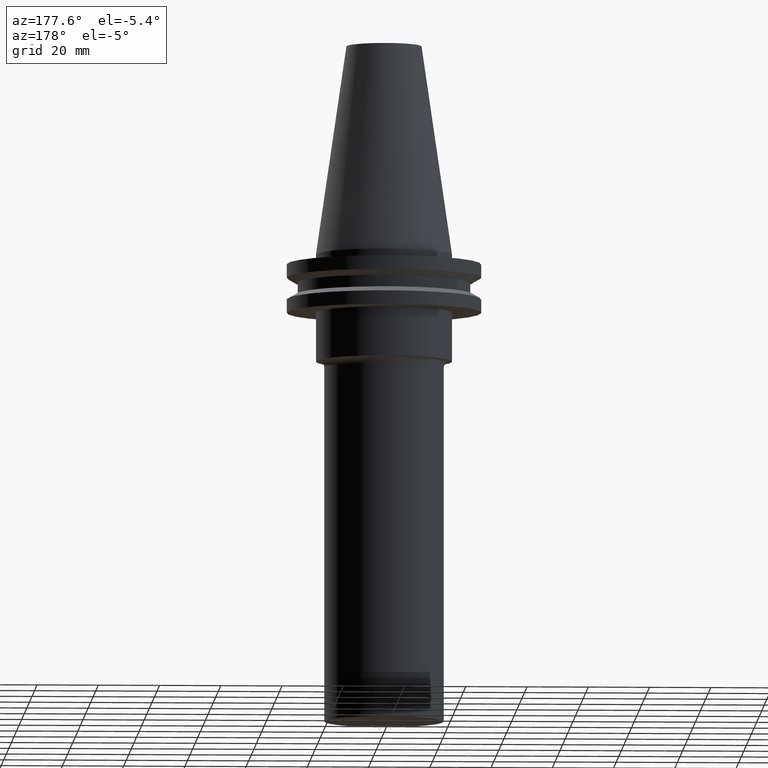
[diagram: clean part render]
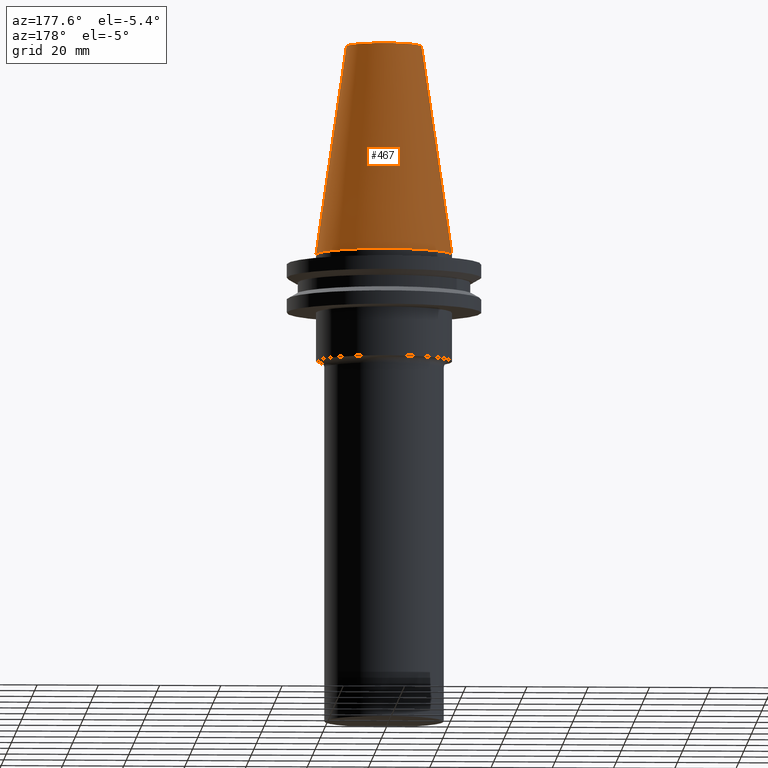
[diagram: same view with one face highlighted and labeled with its STEP entity id]
A machine part, auxiliary view. The second image highlights one B-rep face of the part: STEP entity #467.
In plain terms, the highlighted conical surface has half-angle 8.297 deg.
Its self-contained STEP definition (entity closure, byte-faithful):
#41 = AXIS2_PLACEMENT_3D ( 'NONE', #154, #354, #47 ) ;
#47 = DIRECTION ( 'NONE',  ( -1.000000000000000000, 0.000000000000000000, 0.000000000000000000 ) ) ;
#51 = CARTESIAN_POINT ( 'NONE',  ( 0.000000000000000000, 0.000000000000000000, 0.000000000000000000 ) ) ;
#71 = CIRCLE ( 'NONE', #433, 22.22500000000000142 ) ;
#73 = EDGE_CURVE ( 'NONE', #764, #349, #736, .T. ) ;
#107 = CARTESIAN_POINT ( 'NONE',  ( -22.22500000000000142, 0.000000000000000000, 0.000000000000000000 ) ) ;
#111 = CARTESIAN_POINT ( 'NONE',  ( -22.22500000000000142, 0.000000000000000000, 0.000000000000000000 ) ) ;
#112 = ORIENTED_EDGE ( 'NONE', *, *, #73, .T. ) ;
#154 = CARTESIAN_POINT ( 'NONE',  ( 0.000000000000000000, 0.000000000000000000, 0.000000000000000000 ) ) ;
#165 = CIRCLE ( 'NONE', #568, 12.27178102086201150 ) ;
#188 = DIRECTION ( 'NONE',  ( 1.000000000000000000, 0.000000000000000000, 0.000000000000000000 ) ) ;
#203 = CARTESIAN_POINT ( 'NONE',  ( 22.22500000000000142, 2.721777511104992849E-15, 0.000000000000000000 ) ) ;
#226 = LINE ( 'NONE', #111, #543 ) ;
#307 = DIRECTION ( 'NONE',  ( 0.1443082272672999711, 1.767266086135276757E-17, -0.9895327864921755756 ) ) ;
#311 = CARTESIAN_POINT ( 'NONE',  ( 22.22500000000000142, 2.721777511104992849E-15, 0.000000000000000000 ) ) ;
#323 = ORIENTED_EDGE ( 'NONE', *, *, #490, .T. ) ;
#349 = VERTEX_POINT ( 'NONE', #203 ) ;
#354 = DIRECTION ( 'NONE',  ( 0.000000000000000000, 0.000000000000000000, -1.000000000000000000 ) ) ;
#357 = DIRECTION ( 'NONE',  ( -0.1443082272672999711, 0.000000000000000000, -0.9895327864921755756 ) ) ;
#391 = ORIENTED_EDGE ( 'NONE', *, *, #401, .F. ) ;
#399 = CONICAL_SURFACE ( 'NONE', #41, 22.22500000000000142, 0.1448138465474119174 ) ;
#401 = EDGE_CURVE ( 'NONE', #764, #461, #165, .T. ) ;
#403 = CARTESIAN_POINT ( 'NONE',  ( 12.27178102086201150, 2.112318622904291439E-15, 68.25000000000000000 ) ) ;
#433 = AXIS2_PLACEMENT_3D ( 'NONE', #51, #627, #748 ) ;
#443 = CARTESIAN_POINT ( 'NONE',  ( 0.000000000000000000, 0.000000000000000000, 68.25000000000000000 ) ) ;
#461 = VERTEX_POINT ( 'NONE', #575 ) ;
#467 = ADVANCED_FACE ( 'NONE', ( #578 ), #399, .T. ) ;
#490 = EDGE_CURVE ( 'NONE', #349, #572, #71, .T. ) ;
#543 = VECTOR ( 'NONE', #357, 999.9999999999998863 ) ;
#564 = EDGE_LOOP ( 'NONE', ( #391, #112, #323, #745 ) ) ;
#568 = AXIS2_PLACEMENT_3D ( 'NONE', #443, #616, #188 ) ;
#572 = VERTEX_POINT ( 'NONE', #107 ) ;
#575 = CARTESIAN_POINT ( 'NONE',  ( -12.27178102086201150, 0.000000000000000000, 68.25000000000000000 ) ) ;
#578 = FACE_OUTER_BOUND ( 'NONE', #564, .T. ) ;
#616 = DIRECTION ( 'NONE',  ( -0.000000000000000000, -0.000000000000000000, 1.000000000000000000 ) ) ;
#627 = DIRECTION ( 'NONE',  ( -0.000000000000000000, -0.000000000000000000, 1.000000000000000000 ) ) ;
#675 = VECTOR ( 'NONE', #307, 999.9999999999998863 ) ;
#736 = LINE ( 'NONE', #311, #675 ) ;
#740 = EDGE_CURVE ( 'NONE', #461, #572, #226, .T. ) ;
#745 = ORIENTED_EDGE ( 'NONE', *, *, #740, .F. ) ;
#748 = DIRECTION ( 'NONE',  ( 1.000000000000000000, 0.000000000000000000, 0.000000000000000000 ) ) ;
#764 = VERTEX_POINT ( 'NONE', #403 ) ;